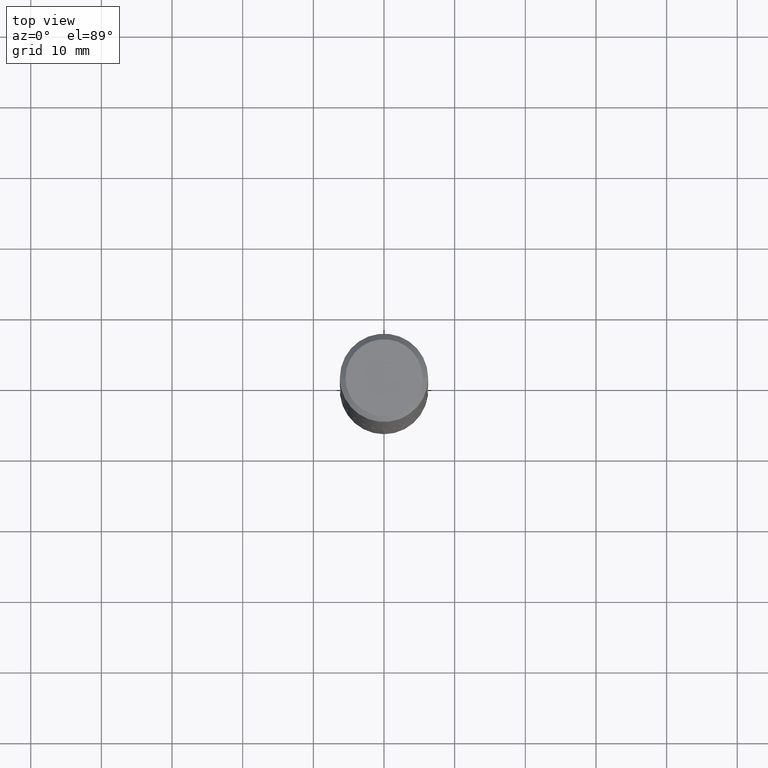
[diagram: clean part render]
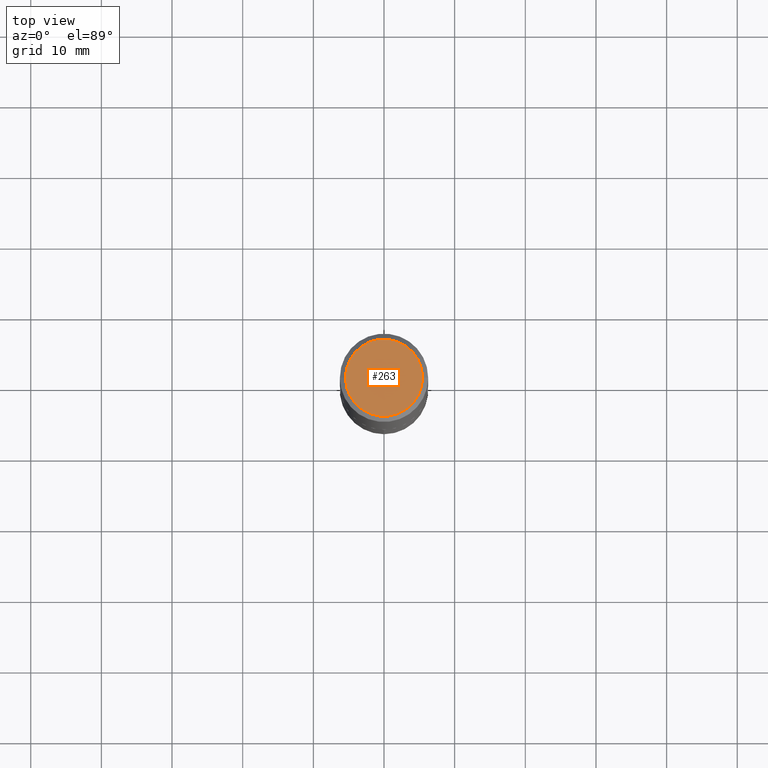
[diagram: same view with one face highlighted and labeled with its STEP entity id]
A machine part, top view. The second image highlights one B-rep face of the part: STEP entity #263.
In plain terms, the highlighted planar face has unit normal (0, -0, -1).
Its self-contained STEP definition (entity closure, byte-faithful):
#19 = CARTESIAN_POINT ( 'NONE',  ( -2.949913012720698115E-47, 4.211693974208535336E-33, 1.206277097160147711E-18 ) ) ;
#22 = PLANE ( 'NONE',  #194 ) ;
#79 = CARTESIAN_POINT ( 'NONE',  ( 0.2147999999999999909, -1.635384647055929600E-15, 1.206277097171110489E-18 ) ) ;
#88 = EDGE_LOOP ( 'NONE', ( #363, #387 ) ) ;
#91 = VERTEX_POINT ( 'NONE', #270 ) ;
#124 = DIRECTION ( 'NONE',  ( -2.445468806185136597E-29, 3.491481338843145583E-15, 1.000000000000000000 ) ) ;
#146 = AXIS2_PLACEMENT_3D ( 'NONE', #19, #380, #222 ) ;
#164 = FACE_OUTER_BOUND ( 'NONE', #88, .T. ) ;
#168 = CIRCLE ( 'NONE', #146, 0.2147999999999999909 ) ;
#170 = CARTESIAN_POINT ( 'NONE',  ( -1.474956506360349058E-47, 2.105846987104267668E-33, 6.031385485800738553E-19 ) ) ;
#194 = AXIS2_PLACEMENT_3D ( 'NONE', #170, #223, #278 ) ;
#197 = EDGE_CURVE ( 'NONE', #376, #91, #210, .T. ) ;
#210 = CIRCLE ( 'NONE', #254, 0.2147999999999999909 ) ;
#222 = DIRECTION ( 'NONE',  ( 1.000000000000000000, -6.982962677686266711E-15, 4.876228898018882925E-29 ) ) ;
#223 = DIRECTION ( 'NONE',  ( 2.438088387897960049E-29, -3.491481338843145188E-15, -1.000000000000000000 ) ) ;
#254 = AXIS2_PLACEMENT_3D ( 'NONE', #307, #124, #276 ) ;
#263 = ADVANCED_FACE ( 'NONE', ( #164 ), #22, .F. ) ;
#269 = EDGE_CURVE ( 'NONE', #91, #376, #168, .T. ) ;
#270 = CARTESIAN_POINT ( 'NONE',  ( -0.2147999999999999909, 1.554494779086433270E-15, 1.206277097149467466E-18 ) ) ;
#276 = DIRECTION ( 'NONE',  ( 1.000000000000000000, -6.982962677686266711E-15, 4.876228898018882925E-29 ) ) ;
#278 = DIRECTION ( 'NONE',  ( -1.000000000000000000, 6.982962677686265922E-15, -4.876176775795935793E-29 ) ) ;
#307 = CARTESIAN_POINT ( 'NONE',  ( -2.949913012720698115E-47, 4.211693974208535336E-33, 1.206277097160147711E-18 ) ) ;
#363 = ORIENTED_EDGE ( 'NONE', *, *, #269, .T. ) ;
#376 = VERTEX_POINT ( 'NONE', #79 ) ;
#380 = DIRECTION ( 'NONE',  ( -2.445468806185136597E-29, 3.491481338843145583E-15, 1.000000000000000000 ) ) ;
#387 = ORIENTED_EDGE ( 'NONE', *, *, #197, .T. ) ;